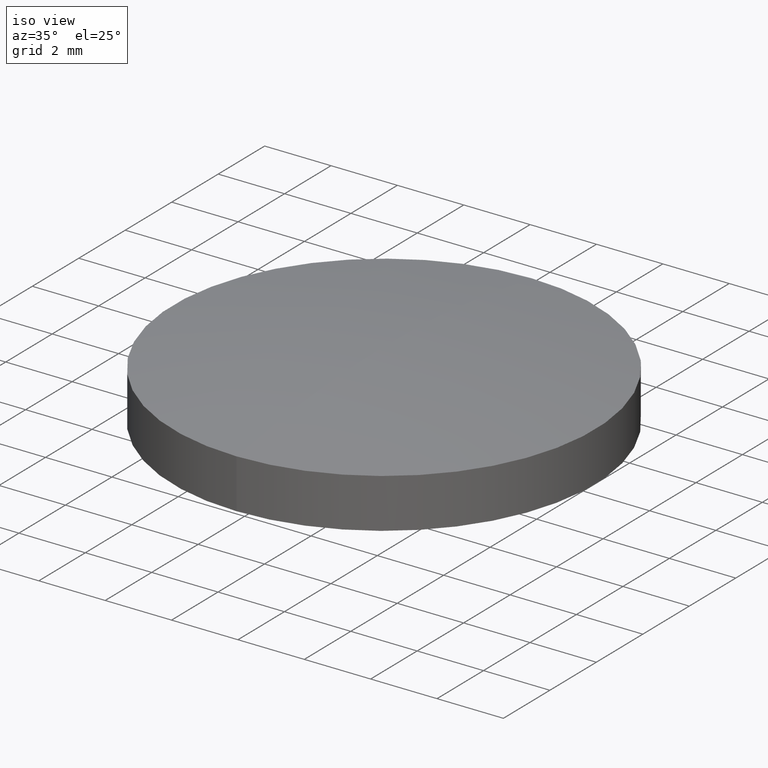
[diagram: clean part render]
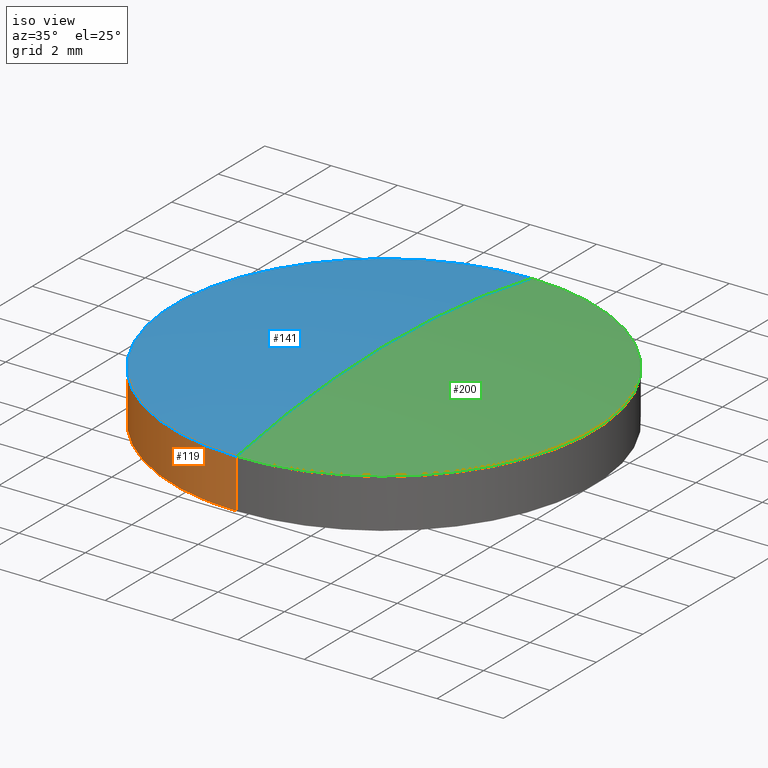
[diagram: same view with three faces highlighted in distinct colors, each labeled with its STEP entity id]
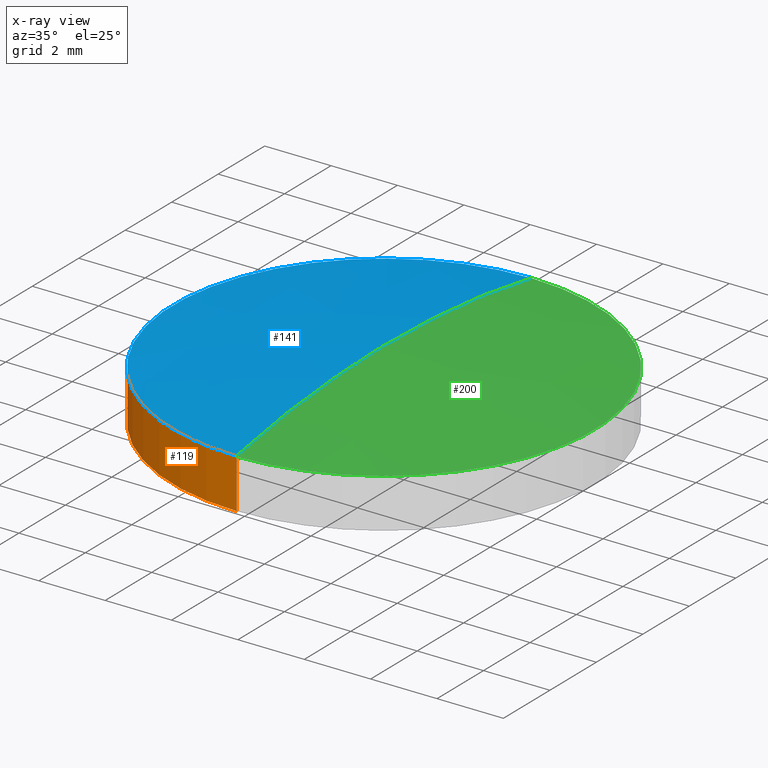
[diagram: x-ray of the same camera — body ghosted, the three highlighted faces saturated]
A machine part, iso view with three faces highlighted in distinct colors.
The next image is the same camera in x-ray (body ghosted, the three faces saturated) — at least one of them is partly hidden behind the body in this view.
Their STEP definitions:

[orange] entity #119 — the highlighted cylindrical surface (partial cylindrical patch) has radius 6.35 mm, axis along (-0, -0, 1).
#7 = DIRECTION ( 'NONE',  ( 0.0000000000000000000, -1.000000000000000000, -1.707404996040164500E-016 ) ) ;
#13 = DIRECTION ( 'NONE',  ( -0.0000000000000000000, -1.836970198721029900E-016, 1.000000000000000000 ) ) ;
#16 = CARTESIAN_POINT ( 'NONE',  ( 0.0000000000000000000, 1.076081682970368500E-016, 0.4542084157273872900 ) ) ;
#17 = CIRCLE ( 'NONE', #39, 6.349999999999999600 ) ;
#19 = CARTESIAN_POINT ( 'NONE',  ( 0.0000000000000000000, 3.820898013339744900E-016, -1.040000000000001400 ) ) ;
#21 = DIRECTION ( 'NONE',  ( 0.0000000000000000000, -1.000000000000000000, -1.878145495644181300E-016 ) ) ;
#22 = DIRECTION ( 'NONE',  ( -0.0000000000000000000, -1.836970198721029900E-016, 1.000000000000000000 ) ) ;
#23 = DIRECTION ( 'NONE',  ( -0.0000000000000000000, -1.836970198721029900E-016, 1.000000000000000000 ) ) ;
#26 = CYLINDRICAL_SURFACE ( 'NONE', #32, 6.349999999999999600 ) ;
#27 = DIRECTION ( 'NONE',  ( -0.0000000000000000000, -1.836970198721029900E-016, 1.000000000000000000 ) ) ;
#28 = CARTESIAN_POINT ( 'NONE',  ( 0.0000000000000000000, -6.349999999999999600, 1.039999999999999100 ) ) ;
#29 = LINE ( 'NONE', #28, #35 ) ;
#30 = CARTESIAN_POINT ( 'NONE',  ( 7.776507174585691200E-016, 6.349999999999998800, 0.4542084157273885100 ) ) ;
#31 = CARTESIAN_POINT ( 'NONE',  ( 7.776507174585692200E-016, 6.349999999999999600, -1.040000000000000300 ) ) ;
#32 = AXIS2_PLACEMENT_3D ( 'NONE', #40, #23, #7 ) ;
#34 = CARTESIAN_POINT ( 'NONE',  ( 0.0000000000000000000, -6.349999999999999600, -1.040000000000002500 ) ) ;
#35 = VECTOR ( 'NONE', #27, 1000.000000000000000 ) ;
#39 = AXIS2_PLACEMENT_3D ( 'NONE', #19, #13, #44 ) ;
#40 = CARTESIAN_POINT ( 'NONE',  ( 0.0000000000000000000, 0.0000000000000000000, 1.040000000000000000 ) ) ;
#41 = CARTESIAN_POINT ( 'NONE',  ( 0.0000000000000000000, -6.349999999999998800, 0.4542084157273861300 ) ) ;
#42 = CIRCLE ( 'NONE', #43, 6.349999999999998800 ) ;
#43 = AXIS2_PLACEMENT_3D ( 'NONE', #16, #22, #21 ) ;
#44 = DIRECTION ( 'NONE',  ( 0.0000000000000000000, -1.000000000000000000, -1.707404996040164500E-016 ) ) ;
#113 = EDGE_CURVE ( 'NONE', #135, #137, #225, .T. ) ;
#119 = ADVANCED_FACE ( 'NONE', ( #219 ), #26, .T. ) ;
#120 = EDGE_CURVE ( 'NONE', #135, #140, #17, .T. ) ;
#122 = ORIENTED_EDGE ( 'NONE', *, *, #113, .F. ) ;
#123 = ORIENTED_EDGE ( 'NONE', *, *, #134, .T. ) ;
#125 = ORIENTED_EDGE ( 'NONE', *, *, #126, .F. ) ;
#126 = EDGE_CURVE ( 'NONE', #137, #138, #42, .T. ) ;
#131 = EDGE_LOOP ( 'NONE', ( #122, #132, #123, #125 ) ) ;
#132 = ORIENTED_EDGE ( 'NONE', *, *, #120, .T. ) ;
#134 = EDGE_CURVE ( 'NONE', #140, #138, #29, .T. ) ;
#135 = VERTEX_POINT ( 'NONE', #31 ) ;
#137 = VERTEX_POINT ( 'NONE', #30 ) ;
#138 = VERTEX_POINT ( 'NONE', #41 ) ;
#140 = VERTEX_POINT ( 'NONE', #34 ) ;
#219 = FACE_OUTER_BOUND ( 'NONE', #131, .T. ) ;
#222 = DIRECTION ( 'NONE',  ( -0.0000000000000000000, -1.836970198721029900E-016, 1.000000000000000000 ) ) ;
#223 = VECTOR ( 'NONE', #222, 1000.000000000000000 ) ;
#224 = CARTESIAN_POINT ( 'NONE',  ( 7.776507174585692200E-016, 6.349999999999999600, 1.040000000000001100 ) ) ;
#225 = LINE ( 'NONE', #224, #223 ) ;

[blue] entity #141 — the highlighted spherical surface has radius 34.71 mm.
#1 = SPHERICAL_SURFACE ( 'NONE', #36, 34.71000000000000100 ) ;
#8 = CARTESIAN_POINT ( 'NONE',  ( 0.0000000000000000000, 0.0000000000000000000, -33.67000000000000200 ) ) ;
#9 = CARTESIAN_POINT ( 'NONE',  ( 0.0000000000000000000, -4.250749039840463200E-015, 1.039999999999999100 ) ) ;
#10 = DIRECTION ( 'NONE',  ( 0.0000000000000000000, 1.000000000000000000, 1.999105129330806300E-016 ) ) ;
#11 = DIRECTION ( 'NONE',  ( -1.000000000000000000, 0.0000000000000000000, 0.0000000000000000000 ) ) ;
#12 = FACE_OUTER_BOUND ( 'NONE', #118, .T. ) ;
#16 = CARTESIAN_POINT ( 'NONE',  ( 0.0000000000000000000, 1.076081682970368500E-016, 0.4542084157273872900 ) ) ;
#21 = DIRECTION ( 'NONE',  ( 0.0000000000000000000, -1.000000000000000000, -1.878145495644181300E-016 ) ) ;
#22 = DIRECTION ( 'NONE',  ( -0.0000000000000000000, -1.836970198721029900E-016, 1.000000000000000000 ) ) ;
#30 = CARTESIAN_POINT ( 'NONE',  ( 7.776507174585691200E-016, 6.349999999999998800, 0.4542084157273885100 ) ) ;
#36 = AXIS2_PLACEMENT_3D ( 'NONE', #8, #11, #10 ) ;
#41 = CARTESIAN_POINT ( 'NONE',  ( 0.0000000000000000000, -6.349999999999998800, 0.4542084157273861300 ) ) ;
#42 = CIRCLE ( 'NONE', #43, 6.349999999999998800 ) ;
#43 = AXIS2_PLACEMENT_3D ( 'NONE', #16, #22, #21 ) ;
#95 = AXIS2_PLACEMENT_3D ( 'NONE', #100, #99, #101 ) ;
#96 = CIRCLE ( 'NONE', #95, 34.71000000000000100 ) ;
#99 = DIRECTION ( 'NONE',  ( 1.000000000000000000, 0.0000000000000000000, 0.0000000000000000000 ) ) ;
#100 = CARTESIAN_POINT ( 'NONE',  ( 0.0000000000000000000, 0.0000000000000000000, -33.67000000000000200 ) ) ;
#101 = DIRECTION ( 'NONE',  ( 0.0000000000000000000, 0.0000000000000000000, -1.000000000000000000 ) ) ;
#115 = ORIENTED_EDGE ( 'NONE', *, *, #201, .F. ) ;
#116 = ORIENTED_EDGE ( 'NONE', *, *, #205, .T. ) ;
#117 = ORIENTED_EDGE ( 'NONE', *, *, #126, .T. ) ;
#118 = EDGE_LOOP ( 'NONE', ( #117, #116, #115 ) ) ;
#126 = EDGE_CURVE ( 'NONE', #137, #138, #42, .T. ) ;
#137 = VERTEX_POINT ( 'NONE', #30 ) ;
#138 = VERTEX_POINT ( 'NONE', #41 ) ;
#139 = VERTEX_POINT ( 'NONE', #9 ) ;
#141 = ADVANCED_FACE ( 'NONE', ( #12 ), #1, .T. ) ;
#150 = DIRECTION ( 'NONE',  ( -1.224646799147353000E-016, -1.000000000000000000, 0.0000000000000000000 ) ) ;
#151 = DIRECTION ( 'NONE',  ( -1.000000000000000000, 1.224646799147353200E-016, 2.249639673992786700E-032 ) ) ;
#152 = AXIS2_PLACEMENT_3D ( 'NONE', #155, #151, #150 ) ;
#155 = CARTESIAN_POINT ( 'NONE',  ( 0.0000000000000000000, 0.0000000000000000000, -33.67000000000000200 ) ) ;
#178 = CIRCLE ( 'NONE', #152, 34.71000000000000100 ) ;
#201 = EDGE_CURVE ( 'NONE', #137, #139, #96, .T. ) ;
#205 = EDGE_CURVE ( 'NONE', #138, #139, #178, .T. ) ;

[green] entity #200 — the highlighted spherical surface has radius 34.71 mm.
#9 = CARTESIAN_POINT ( 'NONE',  ( 0.0000000000000000000, -4.250749039840463200E-015, 1.039999999999999100 ) ) ;
#30 = CARTESIAN_POINT ( 'NONE',  ( 7.776507174585691200E-016, 6.349999999999998800, 0.4542084157273885100 ) ) ;
#41 = CARTESIAN_POINT ( 'NONE',  ( 0.0000000000000000000, -6.349999999999998800, 0.4542084157273861300 ) ) ;
#74 = FACE_OUTER_BOUND ( 'NONE', #121, .T. ) ;
#75 = DIRECTION ( 'NONE',  ( -1.000000000000000000, 0.0000000000000000000, 0.0000000000000000000 ) ) ;
#80 = CARTESIAN_POINT ( 'NONE',  ( 0.0000000000000000000, 0.0000000000000000000, -33.67000000000000200 ) ) ;
#84 = DIRECTION ( 'NONE',  ( 0.0000000000000000000, 1.000000000000000000, 1.999105129330806300E-016 ) ) ;
#85 = SPHERICAL_SURFACE ( 'NONE', #91, 34.71000000000000100 ) ;
#91 = AXIS2_PLACEMENT_3D ( 'NONE', #80, #75, #84 ) ;
#95 = AXIS2_PLACEMENT_3D ( 'NONE', #100, #99, #101 ) ;
#96 = CIRCLE ( 'NONE', #95, 34.71000000000000100 ) ;
#99 = DIRECTION ( 'NONE',  ( 1.000000000000000000, 0.0000000000000000000, 0.0000000000000000000 ) ) ;
#100 = CARTESIAN_POINT ( 'NONE',  ( 0.0000000000000000000, 0.0000000000000000000, -33.67000000000000200 ) ) ;
#101 = DIRECTION ( 'NONE',  ( 0.0000000000000000000, 0.0000000000000000000, -1.000000000000000000 ) ) ;
#121 = EDGE_LOOP ( 'NONE', ( #130, #124, #129 ) ) ;
#124 = ORIENTED_EDGE ( 'NONE', *, *, #203, .T. ) ;
#129 = ORIENTED_EDGE ( 'NONE', *, *, #201, .T. ) ;
#130 = ORIENTED_EDGE ( 'NONE', *, *, #205, .F. ) ;
#137 = VERTEX_POINT ( 'NONE', #30 ) ;
#138 = VERTEX_POINT ( 'NONE', #41 ) ;
#139 = VERTEX_POINT ( 'NONE', #9 ) ;
#148 = DIRECTION ( 'NONE',  ( -0.0000000000000000000, -1.836970198721029900E-016, 1.000000000000000000 ) ) ;
#150 = DIRECTION ( 'NONE',  ( -1.224646799147353000E-016, -1.000000000000000000, 0.0000000000000000000 ) ) ;
#151 = DIRECTION ( 'NONE',  ( -1.000000000000000000, 1.224646799147353200E-016, 2.249639673992786700E-032 ) ) ;
#152 = AXIS2_PLACEMENT_3D ( 'NONE', #155, #151, #150 ) ;
#155 = CARTESIAN_POINT ( 'NONE',  ( 0.0000000000000000000, 0.0000000000000000000, -33.67000000000000200 ) ) ;
#157 = CIRCLE ( 'NONE', #193, 6.349999999999998800 ) ;
#176 = CARTESIAN_POINT ( 'NONE',  ( 0.0000000000000000000, 1.076081682970368500E-016, 0.4542084157273872900 ) ) ;
#178 = CIRCLE ( 'NONE', #152, 34.71000000000000100 ) ;
#192 = DIRECTION ( 'NONE',  ( 0.0000000000000000000, -1.000000000000000000, -1.878145495644181300E-016 ) ) ;
#193 = AXIS2_PLACEMENT_3D ( 'NONE', #176, #148, #192 ) ;
#200 = ADVANCED_FACE ( 'NONE', ( #74 ), #85, .T. ) ;
#201 = EDGE_CURVE ( 'NONE', #137, #139, #96, .T. ) ;
#203 = EDGE_CURVE ( 'NONE', #138, #137, #157, .T. ) ;
#205 = EDGE_CURVE ( 'NONE', #138, #139, #178, .T. ) ;